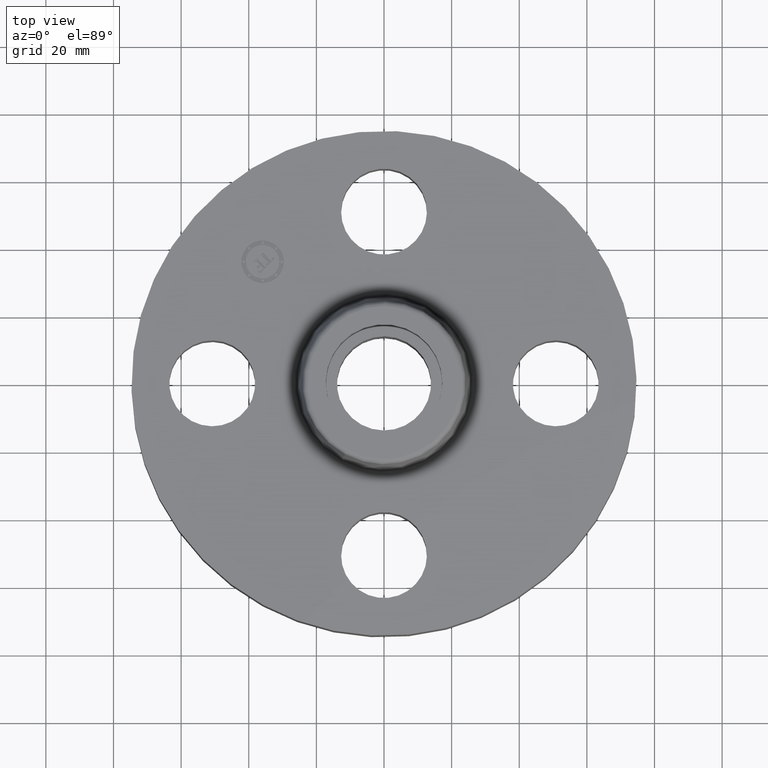
[diagram: clean part render]
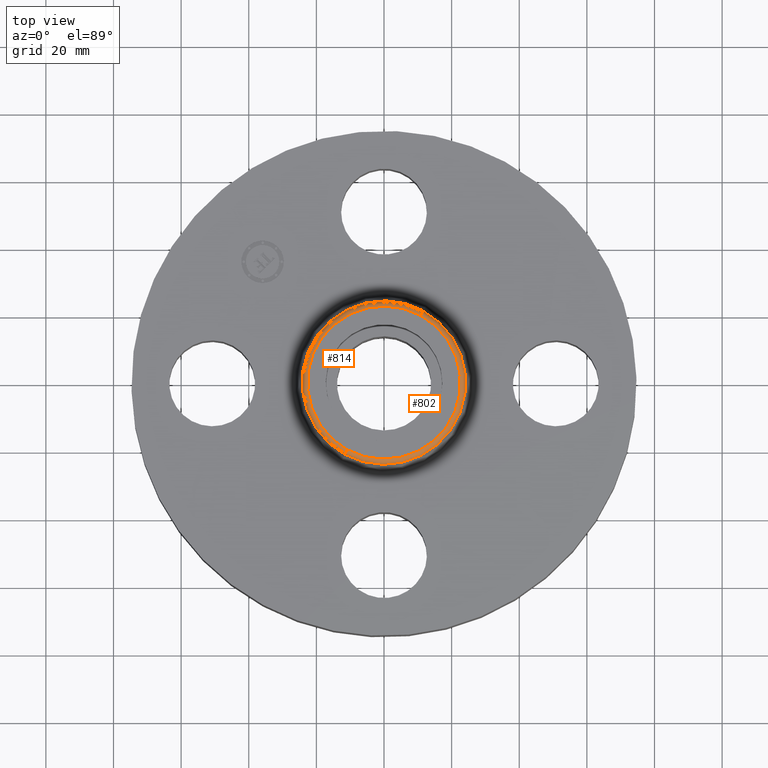
[diagram: same view with one multi-face feature highlighted, each face labeled with its STEP entity id]
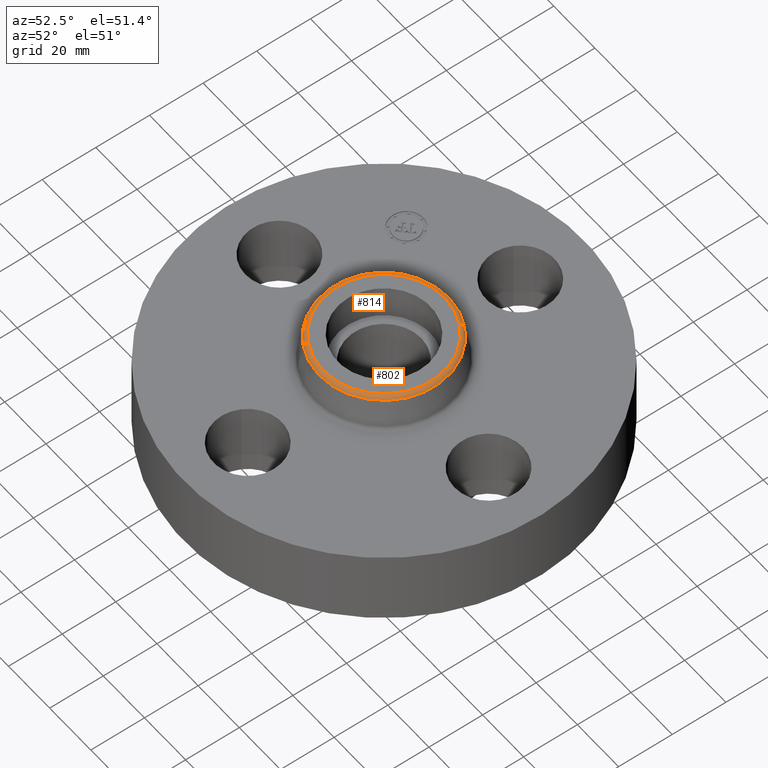
[diagram: same view with one multi-face feature highlighted, each face labeled with its STEP entity id]
A machine part, top view. The highlighted faces form ONE feature: a constant-radius fillet chain: 2 tangent blend faces with common blend radius 1.524 mm. The faces share edges in the B-rep.
A second angle (auxiliary view) of the same feature is appended — it is thin or edge-on in the first view.
Their STEP definitions:
[1] entity #802 (Torus):
#700=AXIS2_PLACEMENT_3D('Circle Axis2P3D',#698,#699,$) ;
#775=AXIS2_PLACEMENT_3D('Torus Axis2P3D',#772,#773,#774) ;
#779=AXIS2_PLACEMENT_3D('Circle Axis2P3D',#777,#778,$) ;
#786=AXIS2_PLACEMENT_3D('Circle Axis2P3D',#784,#785,$) ;
#793=AXIS2_PLACEMENT_3D('Circle Axis2P3D',#791,#792,$) ;
#695=CARTESIAN_POINT('Vertex',(0.455731847603,0.834211551431,1.57041889067)) ;
#698=CARTESIAN_POINT('Axis2P3D Location',(0.,0.,1.57041889067)) ;
#702=CARTESIAN_POINT('Vertex',(-0.455731847603,-0.834211551431,1.57041889067)) ;
#772=CARTESIAN_POINT('Axis2P3D Location',(0.,0.,1.56000000001)) ;
#777=CARTESIAN_POINT('Axis2P3D Location',(0.427403328359,0.782356544779,1.56000000001)) ;
#781=CARTESIAN_POINT('Vertex',(0.427403328359,0.782356544779,1.62000000001)) ;
#784=CARTESIAN_POINT('Axis2P3D Location',(0.,0.,1.62000000001)) ;
#788=CARTESIAN_POINT('Vertex',(-0.427403328359,-0.782356544779,1.62000000001)) ;
#791=CARTESIAN_POINT('Axis2P3D Location',(-0.427403328359,-0.782356544779,1.56000000001)) ;
#699=DIRECTION('Axis2P3D Direction',(0.,0.,-0.0393700787402)) ;
#773=DIRECTION('Axis2P3D Direction',(0.,0.,-0.0393700787402)) ;
#774=DIRECTION('Axis2P3D XDirection',(-0.0188750212049,-0.0345504945626,0.)) ;
#778=DIRECTION('Axis2P3D Direction',(-0.0345504945626,0.0188750212049,0.)) ;
#785=DIRECTION('Axis2P3D Direction',(0.,0.,-0.0393700787402)) ;
#792=DIRECTION('Axis2P3D Direction',(0.0345504945626,-0.0188750212049,0.)) ;
#797=ORIENTED_EDGE('',*,*,#704,.F.) ;
#798=ORIENTED_EDGE('',*,*,#783,.T.) ;
#799=ORIENTED_EDGE('',*,*,#790,.T.) ;
#800=ORIENTED_EDGE('',*,*,#795,.F.) ;
#802=ADVANCED_FACE('PartBody',(#801),#776,.T.) ;
#701=CIRCLE('generated circle',#700,0.95057899696) ;
#780=CIRCLE('generated circle',#779,0.0600000000002) ;
#787=CIRCLE('generated circle',#786,0.891490531779) ;
#794=CIRCLE('generated circle',#793,0.0600000000002) ;
#776=TOROIDAL_SURFACE('homeo Torus',#775,0.891490531779,0.0600000000002) ;
#704=EDGE_CURVE('',#696,#703,#701,.T.) ;
#783=EDGE_CURVE('',#696,#782,#780,.F.) ;
#790=EDGE_CURVE('',#782,#789,#787,.T.) ;
#795=EDGE_CURVE('',#703,#789,#794,.F.) ;
#796=EDGE_LOOP('',(#797,#798,#799,#800)) ;
#801=FACE_OUTER_BOUND('',#796,.T.) ;
#696=VERTEX_POINT('',#695) ;
#703=VERTEX_POINT('',#702) ;
#782=VERTEX_POINT('',#781) ;
#789=VERTEX_POINT('',#788) ;
[2] entity #814 (Torus):
#719=AXIS2_PLACEMENT_3D('Circle Axis2P3D',#717,#718,$) ;
#775=AXIS2_PLACEMENT_3D('Torus Axis2P3D',#772,#773,#774) ;
#779=AXIS2_PLACEMENT_3D('Circle Axis2P3D',#777,#778,$) ;
#793=AXIS2_PLACEMENT_3D('Circle Axis2P3D',#791,#792,$) ;
#805=AXIS2_PLACEMENT_3D('Circle Axis2P3D',#803,#804,$) ;
#695=CARTESIAN_POINT('Vertex',(0.455731847603,0.834211551431,1.57041889067)) ;
#702=CARTESIAN_POINT('Vertex',(-0.455731847603,-0.834211551431,1.57041889067)) ;
#717=CARTESIAN_POINT('Axis2P3D Location',(0.,0.,1.57041889067)) ;
#772=CARTESIAN_POINT('Axis2P3D Location',(0.,0.,1.56000000001)) ;
#777=CARTESIAN_POINT('Axis2P3D Location',(0.427403328359,0.782356544779,1.56000000001)) ;
#781=CARTESIAN_POINT('Vertex',(0.427403328359,0.782356544779,1.62000000001)) ;
#788=CARTESIAN_POINT('Vertex',(-0.427403328359,-0.782356544779,1.62000000001)) ;
#791=CARTESIAN_POINT('Axis2P3D Location',(-0.427403328359,-0.782356544779,1.56000000001)) ;
#803=CARTESIAN_POINT('Axis2P3D Location',(0.,0.,1.62000000001)) ;
#718=DIRECTION('Axis2P3D Direction',(0.,0.,-0.0393700787402)) ;
#773=DIRECTION('Axis2P3D Direction',(0.,0.,-0.0393700787402)) ;
#774=DIRECTION('Axis2P3D XDirection',(-0.0188750212049,-0.0345504945626,0.)) ;
#778=DIRECTION('Axis2P3D Direction',(-0.0345504945626,0.0188750212049,0.)) ;
#792=DIRECTION('Axis2P3D Direction',(0.0345504945626,-0.0188750212049,0.)) ;
#804=DIRECTION('Axis2P3D Direction',(0.,0.,-0.0393700787402)) ;
#809=ORIENTED_EDGE('',*,*,#721,.F.) ;
#810=ORIENTED_EDGE('',*,*,#795,.T.) ;
#811=ORIENTED_EDGE('',*,*,#807,.T.) ;
#812=ORIENTED_EDGE('',*,*,#783,.F.) ;
#814=ADVANCED_FACE('PartBody',(#813),#776,.T.) ;
#720=CIRCLE('generated circle',#719,0.95057899696) ;
#780=CIRCLE('generated circle',#779,0.0600000000002) ;
#794=CIRCLE('generated circle',#793,0.0600000000002) ;
#806=CIRCLE('generated circle',#805,0.891490531779) ;
#776=TOROIDAL_SURFACE('homeo Torus',#775,0.891490531779,0.0600000000002) ;
#721=EDGE_CURVE('',#703,#696,#720,.T.) ;
#783=EDGE_CURVE('',#696,#782,#780,.F.) ;
#795=EDGE_CURVE('',#703,#789,#794,.F.) ;
#807=EDGE_CURVE('',#789,#782,#806,.T.) ;
#808=EDGE_LOOP('',(#809,#810,#811,#812)) ;
#813=FACE_OUTER_BOUND('',#808,.T.) ;
#696=VERTEX_POINT('',#695) ;
#703=VERTEX_POINT('',#702) ;
#782=VERTEX_POINT('',#781) ;
#789=VERTEX_POINT('',#788) ;